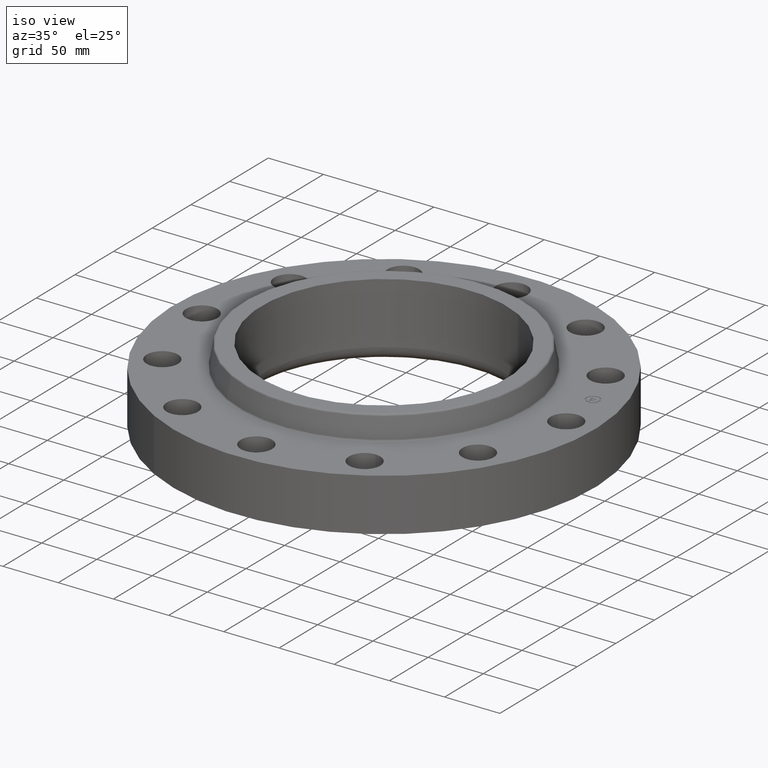
[diagram: clean part render]
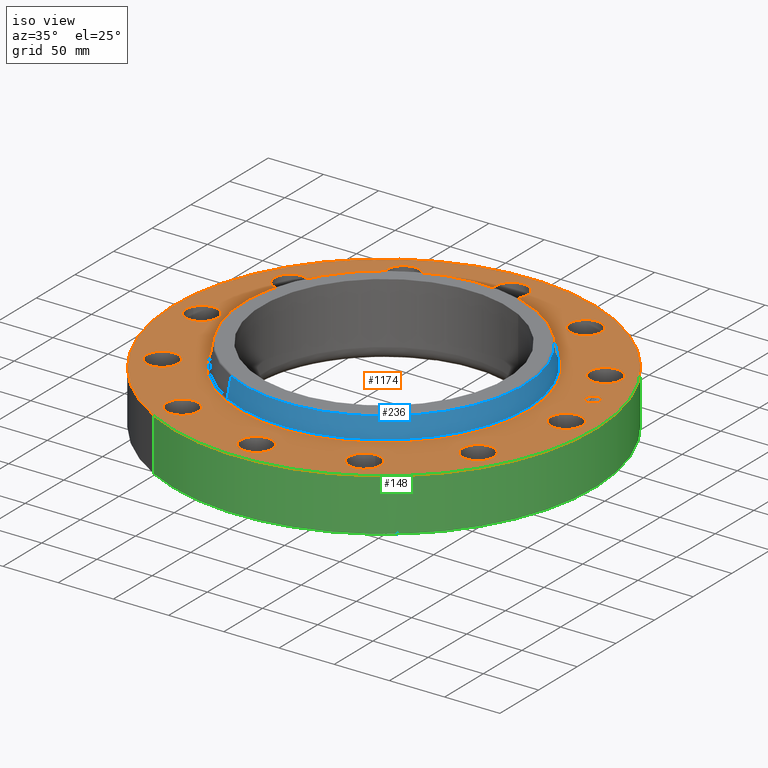
[diagram: same view with three faces highlighted in distinct colors, each labeled with its STEP entity id]
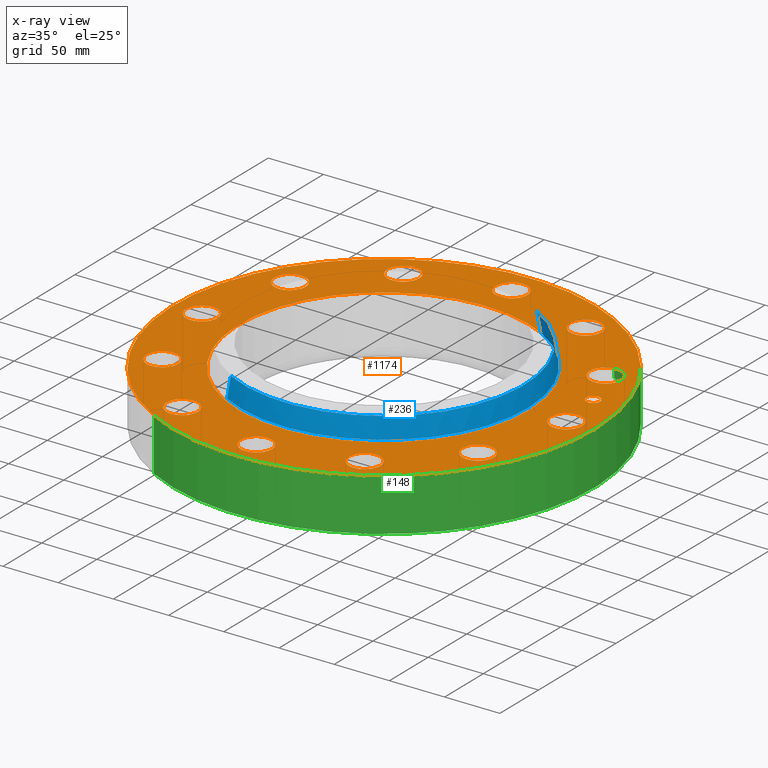
[diagram: x-ray of the same camera — body ghosted, the three highlighted faces saturated]
A machine part, iso view with three faces highlighted in distinct colors.
The next image is the same camera in x-ray (body ghosted, the three faces saturated) — at least one of them is partly hidden behind the body in this view.
Their STEP definitions:

[orange] entity #1174 — the highlighted planar face has unit normal (0, 0, -1).
#65=AXIS2_PLACEMENT_3D('Circle Axis2P3D',#63,#64,$) ;
#82=AXIS2_PLACEMENT_3D('Circle Axis2P3D',#80,#81,$) ;
#115=AXIS2_PLACEMENT_3D('Circle Axis2P3D',#113,#114,$) ;
#139=AXIS2_PLACEMENT_3D('Circle Axis2P3D',#137,#138,$) ;
#156=AXIS2_PLACEMENT_3D('Circle Axis2P3D',#154,#155,$) ;
#191=AXIS2_PLACEMENT_3D('Circle Axis2P3D',#189,#190,$) ;
#643=AXIS2_PLACEMENT_3D('Circle Axis2P3D',#641,#642,$) ;
#655=AXIS2_PLACEMENT_3D('Circle Axis2P3D',#653,#654,$) ;
#686=AXIS2_PLACEMENT_3D('Circle Axis2P3D',#684,#685,$) ;
#698=AXIS2_PLACEMENT_3D('Circle Axis2P3D',#696,#697,$) ;
#729=AXIS2_PLACEMENT_3D('Circle Axis2P3D',#727,#728,$) ;
#741=AXIS2_PLACEMENT_3D('Circle Axis2P3D',#739,#740,$) ;
#772=AXIS2_PLACEMENT_3D('Circle Axis2P3D',#770,#771,$) ;
#784=AXIS2_PLACEMENT_3D('Circle Axis2P3D',#782,#783,$) ;
#815=AXIS2_PLACEMENT_3D('Circle Axis2P3D',#813,#814,$) ;
#827=AXIS2_PLACEMENT_3D('Circle Axis2P3D',#825,#826,$) ;
#858=AXIS2_PLACEMENT_3D('Circle Axis2P3D',#856,#857,$) ;
#870=AXIS2_PLACEMENT_3D('Circle Axis2P3D',#868,#869,$) ;
#901=AXIS2_PLACEMENT_3D('Circle Axis2P3D',#899,#900,$) ;
#913=AXIS2_PLACEMENT_3D('Circle Axis2P3D',#911,#912,$) ;
#944=AXIS2_PLACEMENT_3D('Circle Axis2P3D',#942,#943,$) ;
#956=AXIS2_PLACEMENT_3D('Circle Axis2P3D',#954,#955,$) ;
#987=AXIS2_PLACEMENT_3D('Circle Axis2P3D',#985,#986,$) ;
#999=AXIS2_PLACEMENT_3D('Circle Axis2P3D',#997,#998,$) ;
#1030=AXIS2_PLACEMENT_3D('Circle Axis2P3D',#1028,#1029,$) ;
#1042=AXIS2_PLACEMENT_3D('Circle Axis2P3D',#1040,#1041,$) ;
#1073=AXIS2_PLACEMENT_3D('Circle Axis2P3D',#1071,#1072,$) ;
#1085=AXIS2_PLACEMENT_3D('Circle Axis2P3D',#1083,#1084,$) ;
#1098=AXIS2_PLACEMENT_3D('Plane Axis2P3D',#1095,#1096,#1097) ;
#1158=AXIS2_PLACEMENT_3D('Circle Axis2P3D',#1156,#1157,$) ;
#1167=AXIS2_PLACEMENT_3D('Circle Axis2P3D',#1165,#1166,$) ;
#46=CARTESIAN_POINT('Vertex',(6.00855376537,0.268478301619,1.88000000001)) ;
#60=CARTESIAN_POINT('Vertex',(6.99144623469,-0.268478301619,1.88000000001)) ;
#63=CARTESIAN_POINT('Axis2P3D Location',(6.50000000003,0.,1.88000000001)) ;
#80=CARTESIAN_POINT('Axis2P3D Location',(6.50000000003,0.,1.88000000001)) ;
#110=CARTESIAN_POINT('Vertex',(-3.59569153955,-6.5818692142,1.88000000001)) ;
#113=CARTESIAN_POINT('Axis2P3D Location',(0.,0.,1.88000000001)) ;
#117=CARTESIAN_POINT('Vertex',(3.59569153955,6.5818692142,1.88000000001)) ;
#137=CARTESIAN_POINT('Axis2P3D Location',(0.,0.,1.88000000001)) ;
#154=CARTESIAN_POINT('Axis2P3D Location',(0.,0.,1.88000000001)) ;
#158=CARTESIAN_POINT('Vertex',(2.48119303291,4.54179338195,1.88000000001)) ;
#160=CARTESIAN_POINT('Vertex',(-2.48119303291,-4.54179338195,1.88000000001)) ;
#189=CARTESIAN_POINT('Axis2P3D Location',(0.,0.,1.88000000001)) ;
#631=CARTESIAN_POINT('Vertex',(-5.33779935162,2.77176785312,1.88000000001)) ;
#638=CARTESIAN_POINT('Vertex',(-5.92053089762,3.72823214691,1.88000000001)) ;
#641=CARTESIAN_POINT('Axis2P3D Location',(-5.62916512462,3.25000000001,1.88000000001)) ;
#653=CARTESIAN_POINT('Axis2P3D Location',(-5.62916512462,3.25000000001,1.88000000001)) ;
#674=CARTESIAN_POINT('Vertex',(3.23678591225,-5.06932105,1.88000000001)) ;
#681=CARTESIAN_POINT('Vertex',(3.26321408778,-6.18900919924,1.88000000001)) ;
#684=CARTESIAN_POINT('Axis2P3D Location',(3.25000000001,-5.62916512462,1.88000000001)) ;
#696=CARTESIAN_POINT('Axis2P3D Location',(3.25000000001,-5.62916512462,1.88000000001)) ;
#717=CARTESIAN_POINT('Vertex',(-3.23678591225,5.06932105,1.88000000001)) ;
#724=CARTESIAN_POINT('Vertex',(-3.26321408778,6.18900919924,1.88000000001)) ;
#727=CARTESIAN_POINT('Axis2P3D Location',(-3.25000000001,5.62916512462,1.88000000001)) ;
#739=CARTESIAN_POINT('Axis2P3D Location',(-3.25000000001,5.62916512462,1.88000000001)) ;
#760=CARTESIAN_POINT('Vertex',(0.268478301619,-6.00855376537,1.88000000001)) ;
#767=CARTESIAN_POINT('Vertex',(-0.268478301619,-6.99144623469,1.88000000001)) ;
#770=CARTESIAN_POINT('Axis2P3D Location',(-7.2095472848E-016,-6.50000000003,1.88000000001)) ;
#782=CARTESIAN_POINT('Axis2P3D Location',(-7.2095472848E-016,-6.50000000003,1.88000000001)) ;
#803=CARTESIAN_POINT('Vertex',(-0.268478301619,6.00855376537,1.88000000001)) ;
#810=CARTESIAN_POINT('Vertex',(0.268478301619,6.99144623469,1.88000000001)) ;
#813=CARTESIAN_POINT('Axis2P3D Location',(-1.19403062917E-015,6.50000000003,1.88000000001)) ;
#825=CARTESIAN_POINT('Axis2P3D Location',(-1.19403062917E-015,6.50000000003,1.88000000001)) ;
#846=CARTESIAN_POINT('Vertex',(-2.77176785312,-5.33779935162,1.88000000001)) ;
#853=CARTESIAN_POINT('Vertex',(-3.72823214691,-5.92053089762,1.88000000001)) ;
#856=CARTESIAN_POINT('Axis2P3D Location',(-3.25000000001,-5.62916512462,1.88000000001)) ;
#868=CARTESIAN_POINT('Axis2P3D Location',(-3.25000000001,-5.62916512462,1.88000000001)) ;
#889=CARTESIAN_POINT('Vertex',(2.77176785312,5.33779935162,1.88000000001)) ;
#896=CARTESIAN_POINT('Vertex',(3.72823214691,5.92053089762,1.88000000001)) ;
#899=CARTESIAN_POINT('Axis2P3D Location',(3.25000000001,5.62916512462,1.88000000001)) ;
#911=CARTESIAN_POINT('Axis2P3D Location',(3.25000000001,5.62916512462,1.88000000001)) ;
#932=CARTESIAN_POINT('Vertex',(-5.06932105,-3.23678591225,1.88000000001)) ;
#939=CARTESIAN_POINT('Vertex',(-6.18900919924,-3.26321408778,1.88000000001)) ;
#942=CARTESIAN_POINT('Axis2P3D Location',(-5.62916512462,-3.25000000001,1.88000000001)) ;
#954=CARTESIAN_POINT('Axis2P3D Location',(-5.62916512462,-3.25000000001,1.88000000001)) ;
#975=CARTESIAN_POINT('Vertex',(5.06932105,3.23678591225,1.88000000001)) ;
#982=CARTESIAN_POINT('Vertex',(6.18900919924,3.26321408778,1.88000000001)) ;
#985=CARTESIAN_POINT('Axis2P3D Location',(5.62916512462,3.25000000001,1.88000000001)) ;
#997=CARTESIAN_POINT('Axis2P3D Location',(5.62916512462,3.25000000001,1.88000000001)) ;
#1018=CARTESIAN_POINT('Vertex',(-6.00855376537,-0.268478301619,1.88000000001)) ;
#1025=CARTESIAN_POINT('Vertex',(-6.99144623469,0.268478301619,1.88000000001)) ;
#1028=CARTESIAN_POINT('Axis2P3D Location',(-6.50000000003,-7.96020419449E-016,1.88000000001)) ;
#1040=CARTESIAN_POINT('Axis2P3D Location',(-6.50000000003,-7.96020419449E-016,1.88000000001)) ;
#1061=CARTESIAN_POINT('Vertex',(5.33779935162,-2.77176785312,1.88000000001)) ;
#1068=CARTESIAN_POINT('Vertex',(5.92053089762,-3.72823214691,1.88000000001)) ;
#1071=CARTESIAN_POINT('Axis2P3D Location',(5.62916512462,-3.25000000001,1.88000000001)) ;
#1083=CARTESIAN_POINT('Axis2P3D Location',(5.62916512462,-3.25000000001,1.88000000001)) ;
#1095=CARTESIAN_POINT('Axis2P3D Location',(0.,7.50000000003,1.88000000001)) ;
#1156=CARTESIAN_POINT('Axis2P3D Location',(6.2785178709,1.68232379317,1.88000000001)) ;
#1160=CARTESIAN_POINT('Vertex',(6.21446015724,1.92139043518,1.88000000001)) ;
#1162=CARTESIAN_POINT('Vertex',(6.34257558457,1.44325715117,1.88000000001)) ;
#1165=CARTESIAN_POINT('Axis2P3D Location',(6.2785178709,1.68232379317,1.88000000001)) ;
#64=DIRECTION('Axis2P3D Direction',(0.,-0.,-0.0393700787402)) ;
#81=DIRECTION('Axis2P3D Direction',(0.,-0.,-0.0393700787402)) ;
#114=DIRECTION('Axis2P3D Direction',(0.,0.,-0.0393700787402)) ;
#138=DIRECTION('Axis2P3D Direction',(0.,0.,-0.0393700787402)) ;
#155=DIRECTION('Axis2P3D Direction',(0.,0.,-0.0393700787402)) ;
#190=DIRECTION('Axis2P3D Direction',(0.,0.,-0.0393700787402)) ;
#642=DIRECTION('Axis2P3D Direction',(0.,0.,-0.0393700787402)) ;
#654=DIRECTION('Axis2P3D Direction',(0.,0.,-0.0393700787402)) ;
#685=DIRECTION('Axis2P3D Direction',(0.,-0.,-0.0393700787402)) ;
#697=DIRECTION('Axis2P3D Direction',(0.,-0.,-0.0393700787402)) ;
#728=DIRECTION('Axis2P3D Direction',(0.,0.,-0.0393700787402)) ;
#740=DIRECTION('Axis2P3D Direction',(0.,0.,-0.0393700787402)) ;
#771=DIRECTION('Axis2P3D Direction',(0.,-0.,-0.0393700787402)) ;
#783=DIRECTION('Axis2P3D Direction',(0.,-0.,-0.0393700787402)) ;
#814=DIRECTION('Axis2P3D Direction',(0.,0.,-0.0393700787402)) ;
#826=DIRECTION('Axis2P3D Direction',(0.,0.,-0.0393700787402)) ;
#857=DIRECTION('Axis2P3D Direction',(-0.,0.,-0.0393700787402)) ;
#869=DIRECTION('Axis2P3D Direction',(-0.,0.,-0.0393700787402)) ;
#900=DIRECTION('Axis2P3D Direction',(0.,0.,-0.0393700787402)) ;
#912=DIRECTION('Axis2P3D Direction',(0.,0.,-0.0393700787402)) ;
#943=DIRECTION('Axis2P3D Direction',(-0.,0.,-0.0393700787402)) ;
#955=DIRECTION('Axis2P3D Direction',(-0.,0.,-0.0393700787402)) ;
#986=DIRECTION('Axis2P3D Direction',(0.,0.,-0.0393700787402)) ;
#998=DIRECTION('Axis2P3D Direction',(0.,0.,-0.0393700787402)) ;
#1029=DIRECTION('Axis2P3D Direction',(-0.,0.,-0.0393700787402)) ;
#1041=DIRECTION('Axis2P3D Direction',(-0.,0.,-0.0393700787402)) ;
#1072=DIRECTION('Axis2P3D Direction',(0.,-0.,-0.0393700787402)) ;
#1084=DIRECTION('Axis2P3D Direction',(0.,-0.,-0.0393700787402)) ;
#1096=DIRECTION('Axis2P3D Direction',(0.,0.,-0.0393700787402)) ;
#1097=DIRECTION('Axis2P3D XDirection',(0.0393700787402,0.,0.)) ;
#1157=DIRECTION('Axis2P3D Direction',(0.,0.,-0.0393700787402)) ;
#1166=DIRECTION('Axis2P3D Direction',(0.,0.,-0.0393700787402)) ;
#1101=ORIENTED_EDGE('',*,*,#141,.F.) ;
#1102=ORIENTED_EDGE('',*,*,#119,.F.) ;
#1105=ORIENTED_EDGE('',*,*,#67,.T.) ;
#1106=ORIENTED_EDGE('',*,*,#84,.T.) ;
#1109=ORIENTED_EDGE('',*,*,#193,.T.) ;
#1110=ORIENTED_EDGE('',*,*,#162,.T.) ;
#1113=ORIENTED_EDGE('',*,*,#1087,.T.) ;
#1114=ORIENTED_EDGE('',*,*,#1075,.T.) ;
#1117=ORIENTED_EDGE('',*,*,#700,.T.) ;
#1118=ORIENTED_EDGE('',*,*,#688,.T.) ;
#1121=ORIENTED_EDGE('',*,*,#786,.T.) ;
#1122=ORIENTED_EDGE('',*,*,#774,.T.) ;
#1125=ORIENTED_EDGE('',*,*,#872,.T.) ;
#1126=ORIENTED_EDGE('',*,*,#860,.T.) ;
#1129=ORIENTED_EDGE('',*,*,#958,.T.) ;
#1130=ORIENTED_EDGE('',*,*,#946,.T.) ;
#1133=ORIENTED_EDGE('',*,*,#1044,.T.) ;
#1134=ORIENTED_EDGE('',*,*,#1032,.T.) ;
#1137=ORIENTED_EDGE('',*,*,#657,.T.) ;
#1138=ORIENTED_EDGE('',*,*,#645,.T.) ;
#1141=ORIENTED_EDGE('',*,*,#743,.T.) ;
#1142=ORIENTED_EDGE('',*,*,#731,.T.) ;
#1145=ORIENTED_EDGE('',*,*,#829,.T.) ;
#1146=ORIENTED_EDGE('',*,*,#817,.T.) ;
#1149=ORIENTED_EDGE('',*,*,#915,.T.) ;
#1150=ORIENTED_EDGE('',*,*,#903,.T.) ;
#1153=ORIENTED_EDGE('',*,*,#1001,.T.) ;
#1154=ORIENTED_EDGE('',*,*,#989,.T.) ;
#1171=ORIENTED_EDGE('',*,*,#1164,.T.) ;
#1172=ORIENTED_EDGE('',*,*,#1169,.T.) ;
#1107=FACE_BOUND('',#1104,.T.) ;
#1111=FACE_BOUND('',#1108,.T.) ;
#1115=FACE_BOUND('',#1112,.T.) ;
#1119=FACE_BOUND('',#1116,.T.) ;
#1123=FACE_BOUND('',#1120,.T.) ;
#1127=FACE_BOUND('',#1124,.T.) ;
#1131=FACE_BOUND('',#1128,.T.) ;
#1135=FACE_BOUND('',#1132,.T.) ;
#1139=FACE_BOUND('',#1136,.T.) ;
#1143=FACE_BOUND('',#1140,.T.) ;
#1147=FACE_BOUND('',#1144,.T.) ;
#1151=FACE_BOUND('',#1148,.T.) ;
#1155=FACE_BOUND('',#1152,.T.) ;
#1173=FACE_BOUND('',#1170,.T.) ;
#1174=ADVANCED_FACE('PartBody',(#1103,#1107,#1111,#1115,#1119,#1123,#1127,#1131,#1135,#1139,#1143,#1147,#1151,#1155,#1173),#1099,.F.) ;
#66=CIRCLE('generated circle',#65,0.560000000002) ;
#83=CIRCLE('generated circle',#82,0.560000000002) ;
#116=CIRCLE('generated circle',#115,7.50000000003) ;
#140=CIRCLE('generated circle',#139,7.50000000003) ;
#157=CIRCLE('generated circle',#156,5.17534597789) ;
#192=CIRCLE('generated circle',#191,5.17534597789) ;
#644=CIRCLE('generated circle',#643,0.560000000002) ;
#656=CIRCLE('generated circle',#655,0.560000000002) ;
#687=CIRCLE('generated circle',#686,0.560000000002) ;
#699=CIRCLE('generated circle',#698,0.560000000002) ;
#730=CIRCLE('generated circle',#729,0.560000000002) ;
#742=CIRCLE('generated circle',#741,0.560000000002) ;
#773=CIRCLE('generated circle',#772,0.560000000002) ;
#785=CIRCLE('generated circle',#784,0.560000000002) ;
#816=CIRCLE('generated circle',#815,0.560000000002) ;
#828=CIRCLE('generated circle',#827,0.560000000002) ;
#859=CIRCLE('generated circle',#858,0.560000000002) ;
#871=CIRCLE('generated circle',#870,0.560000000002) ;
#902=CIRCLE('generated circle',#901,0.560000000002) ;
#914=CIRCLE('generated circle',#913,0.560000000002) ;
#945=CIRCLE('generated circle',#944,0.560000000002) ;
#957=CIRCLE('generated circle',#956,0.560000000002) ;
#988=CIRCLE('generated circle',#987,0.560000000002) ;
#1000=CIRCLE('generated circle',#999,0.560000000002) ;
#1031=CIRCLE('generated circle',#1030,0.560000000002) ;
#1043=CIRCLE('generated circle',#1042,0.560000000002) ;
#1074=CIRCLE('generated circle',#1073,0.560000000002) ;
#1086=CIRCLE('generated circle',#1085,0.560000000002) ;
#1159=CIRCLE('generated circle',#1158,0.247500000001) ;
#1168=CIRCLE('generated circle',#1167,0.247500000001) ;
#67=EDGE_CURVE('',#47,#61,#66,.T.) ;
#84=EDGE_CURVE('',#61,#47,#83,.T.) ;
#119=EDGE_CURVE('',#111,#118,#116,.T.) ;
#141=EDGE_CURVE('',#118,#111,#140,.T.) ;
#162=EDGE_CURVE('',#159,#161,#157,.T.) ;
#193=EDGE_CURVE('',#161,#159,#192,.T.) ;
#645=EDGE_CURVE('',#632,#639,#644,.T.) ;
#657=EDGE_CURVE('',#639,#632,#656,.T.) ;
#688=EDGE_CURVE('',#675,#682,#687,.T.) ;
#700=EDGE_CURVE('',#682,#675,#699,.T.) ;
#731=EDGE_CURVE('',#718,#725,#730,.T.) ;
#743=EDGE_CURVE('',#725,#718,#742,.T.) ;
#774=EDGE_CURVE('',#761,#768,#773,.T.) ;
#786=EDGE_CURVE('',#768,#761,#785,.T.) ;
#817=EDGE_CURVE('',#804,#811,#816,.T.) ;
#829=EDGE_CURVE('',#811,#804,#828,.T.) ;
#860=EDGE_CURVE('',#847,#854,#859,.T.) ;
#872=EDGE_CURVE('',#854,#847,#871,.T.) ;
#903=EDGE_CURVE('',#890,#897,#902,.T.) ;
#915=EDGE_CURVE('',#897,#890,#914,.T.) ;
#946=EDGE_CURVE('',#933,#940,#945,.T.) ;
#958=EDGE_CURVE('',#940,#933,#957,.T.) ;
#989=EDGE_CURVE('',#976,#983,#988,.T.) ;
#1001=EDGE_CURVE('',#983,#976,#1000,.T.) ;
#1032=EDGE_CURVE('',#1019,#1026,#1031,.T.) ;
#1044=EDGE_CURVE('',#1026,#1019,#1043,.T.) ;
#1075=EDGE_CURVE('',#1062,#1069,#1074,.T.) ;
#1087=EDGE_CURVE('',#1069,#1062,#1086,.T.) ;
#1164=EDGE_CURVE('',#1161,#1163,#1159,.T.) ;
#1169=EDGE_CURVE('',#1163,#1161,#1168,.T.) ;
#1100=EDGE_LOOP('',(#1101,#1102)) ;
#1104=EDGE_LOOP('',(#1105,#1106)) ;
#1108=EDGE_LOOP('',(#1109,#1110)) ;
#1112=EDGE_LOOP('',(#1113,#1114)) ;
#1116=EDGE_LOOP('',(#1117,#1118)) ;
#1120=EDGE_LOOP('',(#1121,#1122)) ;
#1124=EDGE_LOOP('',(#1125,#1126)) ;
#1128=EDGE_LOOP('',(#1129,#1130)) ;
#1132=EDGE_LOOP('',(#1133,#1134)) ;
#1136=EDGE_LOOP('',(#1137,#1138)) ;
#1140=EDGE_LOOP('',(#1141,#1142)) ;
#1144=EDGE_LOOP('',(#1145,#1146)) ;
#1148=EDGE_LOOP('',(#1149,#1150)) ;
#1152=EDGE_LOOP('',(#1153,#1154)) ;
#1170=EDGE_LOOP('',(#1171,#1172)) ;
#1103=FACE_OUTER_BOUND('',#1100,.T.) ;
#1099=PLANE('',#1098) ;
#47=VERTEX_POINT('',#46) ;
#61=VERTEX_POINT('',#60) ;
#111=VERTEX_POINT('',#110) ;
#118=VERTEX_POINT('',#117) ;
#159=VERTEX_POINT('',#158) ;
#161=VERTEX_POINT('',#160) ;
#632=VERTEX_POINT('',#631) ;
#639=VERTEX_POINT('',#638) ;
#675=VERTEX_POINT('',#674) ;
#682=VERTEX_POINT('',#681) ;
#718=VERTEX_POINT('',#717) ;
#725=VERTEX_POINT('',#724) ;
#761=VERTEX_POINT('',#760) ;
#768=VERTEX_POINT('',#767) ;
#804=VERTEX_POINT('',#803) ;
#811=VERTEX_POINT('',#810) ;
#847=VERTEX_POINT('',#846) ;
#854=VERTEX_POINT('',#853) ;
#890=VERTEX_POINT('',#889) ;
#897=VERTEX_POINT('',#896) ;
#933=VERTEX_POINT('',#932) ;
#940=VERTEX_POINT('',#939) ;
#976=VERTEX_POINT('',#975) ;
#983=VERTEX_POINT('',#982) ;
#1019=VERTEX_POINT('',#1018) ;
#1026=VERTEX_POINT('',#1025) ;
#1062=VERTEX_POINT('',#1061) ;
#1069=VERTEX_POINT('',#1068) ;
#1161=VERTEX_POINT('',#1160) ;
#1163=VERTEX_POINT('',#1162) ;

[blue] entity #236 — the highlighted conical surface has half-angle 10 deg.
#172=AXIS2_PLACEMENT_3D('Circle Axis2P3D',#170,#171,$) ;
#209=AXIS2_PLACEMENT_3D('Cone Axis2P3D',#206,#207,#208) ;
#220=AXIS2_PLACEMENT_3D('Circle Axis2P3D',#218,#219,$) ;
#167=CARTESIAN_POINT('Vertex',(2.45286451367,4.4899383753,1.92958110935)) ;
#170=CARTESIAN_POINT('Axis2P3D Location',(0.,0.,1.92958110935)) ;
#174=CARTESIAN_POINT('Vertex',(-2.45286451367,-4.4899383753,1.92958110935)) ;
#206=CARTESIAN_POINT('Axis2P3D Location',(0.,0.,2.64041889067)) ;
#211=CARTESIAN_POINT('Line Origine',(2.42281894399,4.4349403289,2.28500000001)) ;
#215=CARTESIAN_POINT('Vertex',(2.39277337431,4.37994228251,2.64041889067)) ;
#218=CARTESIAN_POINT('Axis2P3D Location',(0.,0.,2.64041889067)) ;
#222=CARTESIAN_POINT('Vertex',(-2.39277337431,-4.37994228251,2.64041889067)) ;
#225=CARTESIAN_POINT('Line Origine',(-2.42281894399,-4.4349403289,2.28500000001)) ;
#171=DIRECTION('Axis2P3D Direction',(0.,0.,-0.0393700787402)) ;
#207=DIRECTION('Axis2P3D Direction',(0.,0.,-0.0393700787402)) ;
#208=DIRECTION('Axis2P3D XDirection',(-0.0188750212049,-0.0345504945626,0.)) ;
#212=DIRECTION('Vector Direction',(0.00327761303565,0.00599963041829,-0.03877195878)) ;
#219=DIRECTION('Axis2P3D Direction',(0.,0.,-0.0393700787402)) ;
#226=DIRECTION('Vector Direction',(-0.00327761303565,-0.00599963041829,-0.03877195878)) ;
#213=VECTOR('Line Direction',#212,0.0393700787402) ;
#227=VECTOR('Line Direction',#226,0.0393700787402) ;
#231=ORIENTED_EDGE('',*,*,#176,.F.) ;
#232=ORIENTED_EDGE('',*,*,#217,.T.) ;
#233=ORIENTED_EDGE('',*,*,#224,.T.) ;
#234=ORIENTED_EDGE('',*,*,#229,.F.) ;
#236=ADVANCED_FACE('PartBody',(#235),#210,.T.) ;
#173=CIRCLE('generated circle',#172,5.11625751271) ;
#221=CIRCLE('generated circle',#220,4.99091763296) ;
#210=CONICAL_SURFACE('Cone',#209,4.99091763296,0.174532925199) ;
#176=EDGE_CURVE('',#168,#175,#173,.T.) ;
#217=EDGE_CURVE('',#168,#216,#214,.F.) ;
#224=EDGE_CURVE('',#216,#223,#221,.T.) ;
#229=EDGE_CURVE('',#175,#223,#228,.F.) ;
#230=EDGE_LOOP('',(#231,#232,#233,#234)) ;
#235=FACE_OUTER_BOUND('',#230,.T.) ;
#214=LINE('Line',#211,#213) ;
#228=LINE('Line',#225,#227) ;
#168=VERTEX_POINT('',#167) ;
#175=VERTEX_POINT('',#174) ;
#216=VERTEX_POINT('',#215) ;
#223=VERTEX_POINT('',#222) ;

[green] entity #148 — the highlighted cylindrical surface (partial cylindrical patch) has radius 190.5 mm, axis along (0, 0, -1).
#95=AXIS2_PLACEMENT_3D('Cylinder Axis2P3D',#92,#93,#94) ;
#134=AXIS2_PLACEMENT_3D('Circle Axis2P3D',#132,#133,$) ;
#139=AXIS2_PLACEMENT_3D('Circle Axis2P3D',#137,#138,$) ;
#92=CARTESIAN_POINT('Axis2P3D Location',(0.,0.,1.34500000001)) ;
#101=CARTESIAN_POINT('Vertex',(-3.59569153955,-6.5818692142,8.39223703654E-016)) ;
#103=CARTESIAN_POINT('Vertex',(3.59569153955,6.5818692142,8.39223703654E-016)) ;
#106=CARTESIAN_POINT('Line Origine',(-3.59569153955,-6.5818692142,0.940000000004)) ;
#110=CARTESIAN_POINT('Vertex',(-3.59569153955,-6.5818692142,1.88000000001)) ;
#117=CARTESIAN_POINT('Vertex',(3.59569153955,6.5818692142,1.88000000001)) ;
#120=CARTESIAN_POINT('Line Origine',(3.59569153955,6.5818692142,0.940000000004)) ;
#132=CARTESIAN_POINT('Axis2P3D Location',(0.,0.,8.39223703654E-016)) ;
#137=CARTESIAN_POINT('Axis2P3D Location',(0.,0.,1.88000000001)) ;
#93=DIRECTION('Axis2P3D Direction',(0.,0.,-0.0393700787402)) ;
#94=DIRECTION('Axis2P3D XDirection',(0.0188750212049,0.0345504945626,0.)) ;
#107=DIRECTION('Vector Direction',(0.,0.,-0.0393700787402)) ;
#121=DIRECTION('Vector Direction',(0.,0.,-0.0393700787402)) ;
#133=DIRECTION('Axis2P3D Direction',(0.,0.,-0.0393700787402)) ;
#138=DIRECTION('Axis2P3D Direction',(0.,0.,-0.0393700787402)) ;
#108=VECTOR('Line Direction',#107,0.0393700787402) ;
#122=VECTOR('Line Direction',#121,0.0393700787402) ;
#143=ORIENTED_EDGE('',*,*,#136,.F.) ;
#144=ORIENTED_EDGE('',*,*,#124,.T.) ;
#145=ORIENTED_EDGE('',*,*,#141,.T.) ;
#146=ORIENTED_EDGE('',*,*,#112,.F.) ;
#148=ADVANCED_FACE('PartBody',(#147),#96,.T.) ;
#135=CIRCLE('generated circle',#134,7.50000000003) ;
#140=CIRCLE('generated circle',#139,7.50000000003) ;
#96=CYLINDRICAL_SURFACE('generated cylinder',#95,7.50000000003) ;
#112=EDGE_CURVE('',#102,#111,#109,.F.) ;
#124=EDGE_CURVE('',#104,#118,#123,.F.) ;
#136=EDGE_CURVE('',#104,#102,#135,.T.) ;
#141=EDGE_CURVE('',#118,#111,#140,.T.) ;
#142=EDGE_LOOP('',(#143,#144,#145,#146)) ;
#147=FACE_OUTER_BOUND('',#142,.T.) ;
#109=LINE('Line',#106,#108) ;
#123=LINE('Line',#120,#122) ;
#102=VERTEX_POINT('',#101) ;
#104=VERTEX_POINT('',#103) ;
#111=VERTEX_POINT('',#110) ;
#118=VERTEX_POINT('',#117) ;